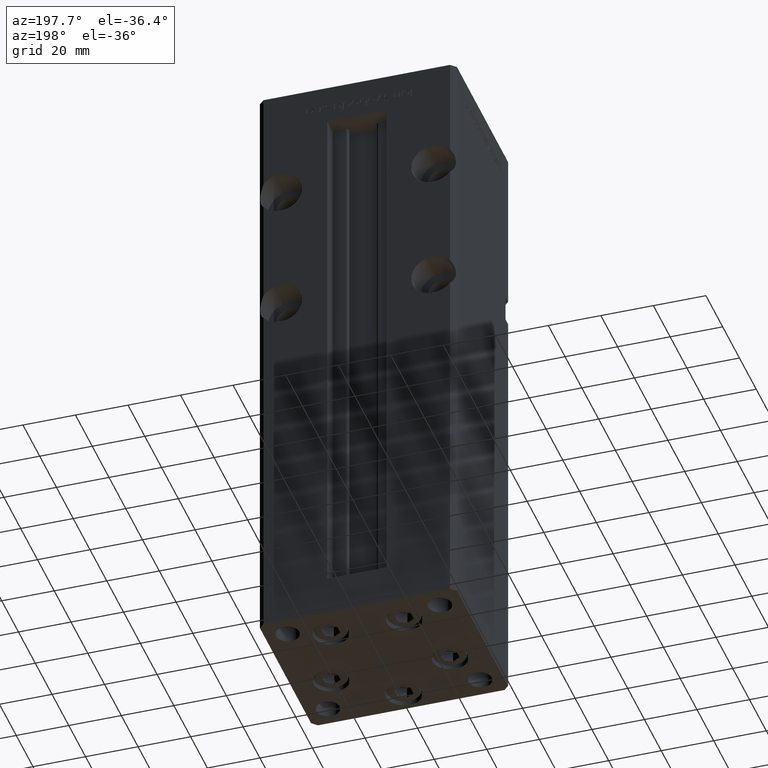
[diagram: clean part render]
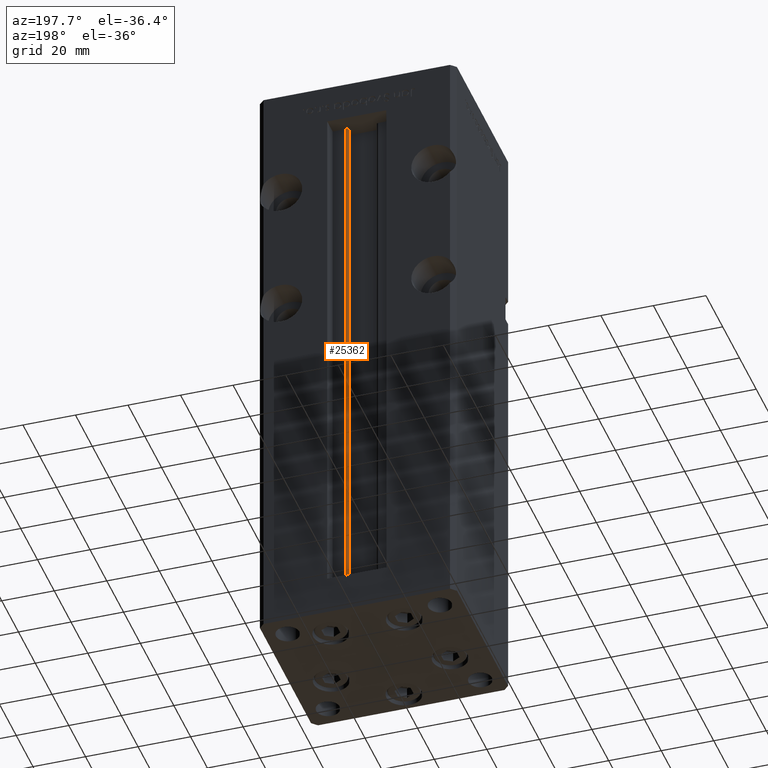
[diagram: same view with one face highlighted and labeled with its STEP entity id]
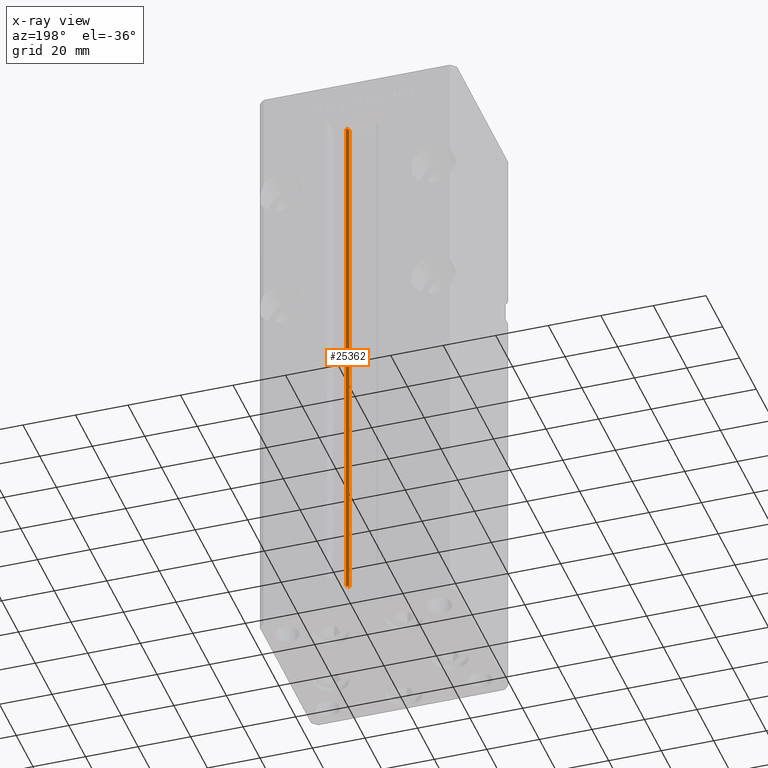
[diagram: x-ray of the same camera — body ghosted, the highlighted face saturated]
A machine part, auxiliary view. The second image highlights one B-rep face of the part: STEP entity #25362.
The next image is the same camera in x-ray: the body ghosted, the highlighted face saturated — about 0% of this face is hidden behind the body in this view.
In plain terms, the highlighted cylindrical surface (edge-blend (fillet) strip) has radius 0.9333 mm, axis along (0, 0, 1).
Its self-contained STEP definition (entity closure, byte-faithful):
#366 = EDGE_LOOP ( 'NONE', ( #45970, #45119, #32075, #36719 ) ) ;
#2317 = DIRECTION ( 'NONE',  ( 1.000000000000000000, 0.000000000000000000, 0.000000000000000000 ) ) ;
#7624 = VECTOR ( 'NONE', #14873, 1000.000000000000000 ) ;
#10580 = CARTESIAN_POINT ( 'NONE',  ( 5.375042956467928512, 24.59999999999899245, 0.000000000000000000 ) ) ;
#10958 = LINE ( 'NONE', #25124, #40365 ) ;
#11056 = AXIS2_PLACEMENT_3D ( 'NONE', #42287, #38240, #49566 ) ;
#14871 = CARTESIAN_POINT ( 'NONE',  ( 6.183333333333980164, 26.00000000000000000, 206.0000000000000000 ) ) ;
#14873 = DIRECTION ( 'NONE',  ( -0.000000000000000000, -0.000000000000000000, 1.000000000000000000 ) ) ;
#17040 = VERTEX_POINT ( 'NONE', #31029 ) ;
#17902 = CIRCLE ( 'NONE', #11056, 0.9333333333340008142 ) ;
#19738 = VERTEX_POINT ( 'NONE', #32541 ) ;
#21955 = DIRECTION ( 'NONE',  ( -0.000000000000000000, -0.000000000000000000, -1.000000000000000000 ) ) ;
#23218 = CARTESIAN_POINT ( 'NONE',  ( 5.375042956467928512, 24.59999999999899245, 0.000000000000000000 ) ) ;
#25124 = CARTESIAN_POINT ( 'NONE',  ( 6.183333333333980164, 26.00000000000000000, 0.000000000000000000 ) ) ;
#25362 = ADVANCED_FACE ( 'NONE', ( #41123 ), #52715, .T. ) ;
#26670 = LINE ( 'NONE', #10580, #7624 ) ;
#28219 = DIRECTION ( 'NONE',  ( -0.000000000000000000, -0.000000000000000000, 1.000000000000000000 ) ) ;
#28318 = EDGE_CURVE ( 'NONE', #38473, #19738, #44303, .T. ) ;
#29742 = AXIS2_PLACEMENT_3D ( 'NONE', #33318, #28219, #32519 ) ;
#31029 = CARTESIAN_POINT ( 'NONE',  ( 5.375042956467926736, 24.59999999999899245, 206.0000000000000000 ) ) ;
#31407 = AXIS2_PLACEMENT_3D ( 'NONE', #42643, #21955, #2317 ) ;
#32075 = ORIENTED_EDGE ( 'NONE', *, *, #35770, .T. ) ;
#32519 = DIRECTION ( 'NONE',  ( 1.000000000000000000, 0.000000000000000000, 0.000000000000000000 ) ) ;
#32541 = CARTESIAN_POINT ( 'NONE',  ( 6.183333333333980164, 26.00000000000000000, 0.000000000000000000 ) ) ;
#33318 = CARTESIAN_POINT ( 'NONE',  ( 6.183333333333980164, 25.06666666666599852, 0.000000000000000000 ) ) ;
#35722 = EDGE_CURVE ( 'NONE', #17040, #50869, #17902, .T. ) ;
#35770 = EDGE_CURVE ( 'NONE', #38473, #17040, #26670, .T. ) ;
#36719 = ORIENTED_EDGE ( 'NONE', *, *, #35722, .T. ) ;
#38240 = DIRECTION ( 'NONE',  ( 0.000000000000000000, 0.000000000000000000, -1.000000000000000000 ) ) ;
#38473 = VERTEX_POINT ( 'NONE', #23218 ) ;
#40365 = VECTOR ( 'NONE', #41530, 1000.000000000000000 ) ;
#41123 = FACE_OUTER_BOUND ( 'NONE', #366, .T. ) ;
#41530 = DIRECTION ( 'NONE',  ( -0.000000000000000000, -0.000000000000000000, 1.000000000000000000 ) ) ;
#42287 = CARTESIAN_POINT ( 'NONE',  ( 6.183333333333980164, 25.06666666666599852, 206.0000000000000000 ) ) ;
#42643 = CARTESIAN_POINT ( 'NONE',  ( 6.183333333333980164, 25.06666666666599852, 0.000000000000000000 ) ) ;
#44303 = CIRCLE ( 'NONE', #31407, 0.9333333333340008142 ) ;
#45119 = ORIENTED_EDGE ( 'NONE', *, *, #28318, .F. ) ;
#45668 = EDGE_CURVE ( 'NONE', #19738, #50869, #10958, .T. ) ;
#45970 = ORIENTED_EDGE ( 'NONE', *, *, #45668, .F. ) ;
#49566 = DIRECTION ( 'NONE',  ( 1.000000000000000000, 0.000000000000000000, 0.000000000000000000 ) ) ;
#50869 = VERTEX_POINT ( 'NONE', #14871 ) ;
#52715 = CYLINDRICAL_SURFACE ( 'NONE', #29742, 0.9333333333340008142 ) ;